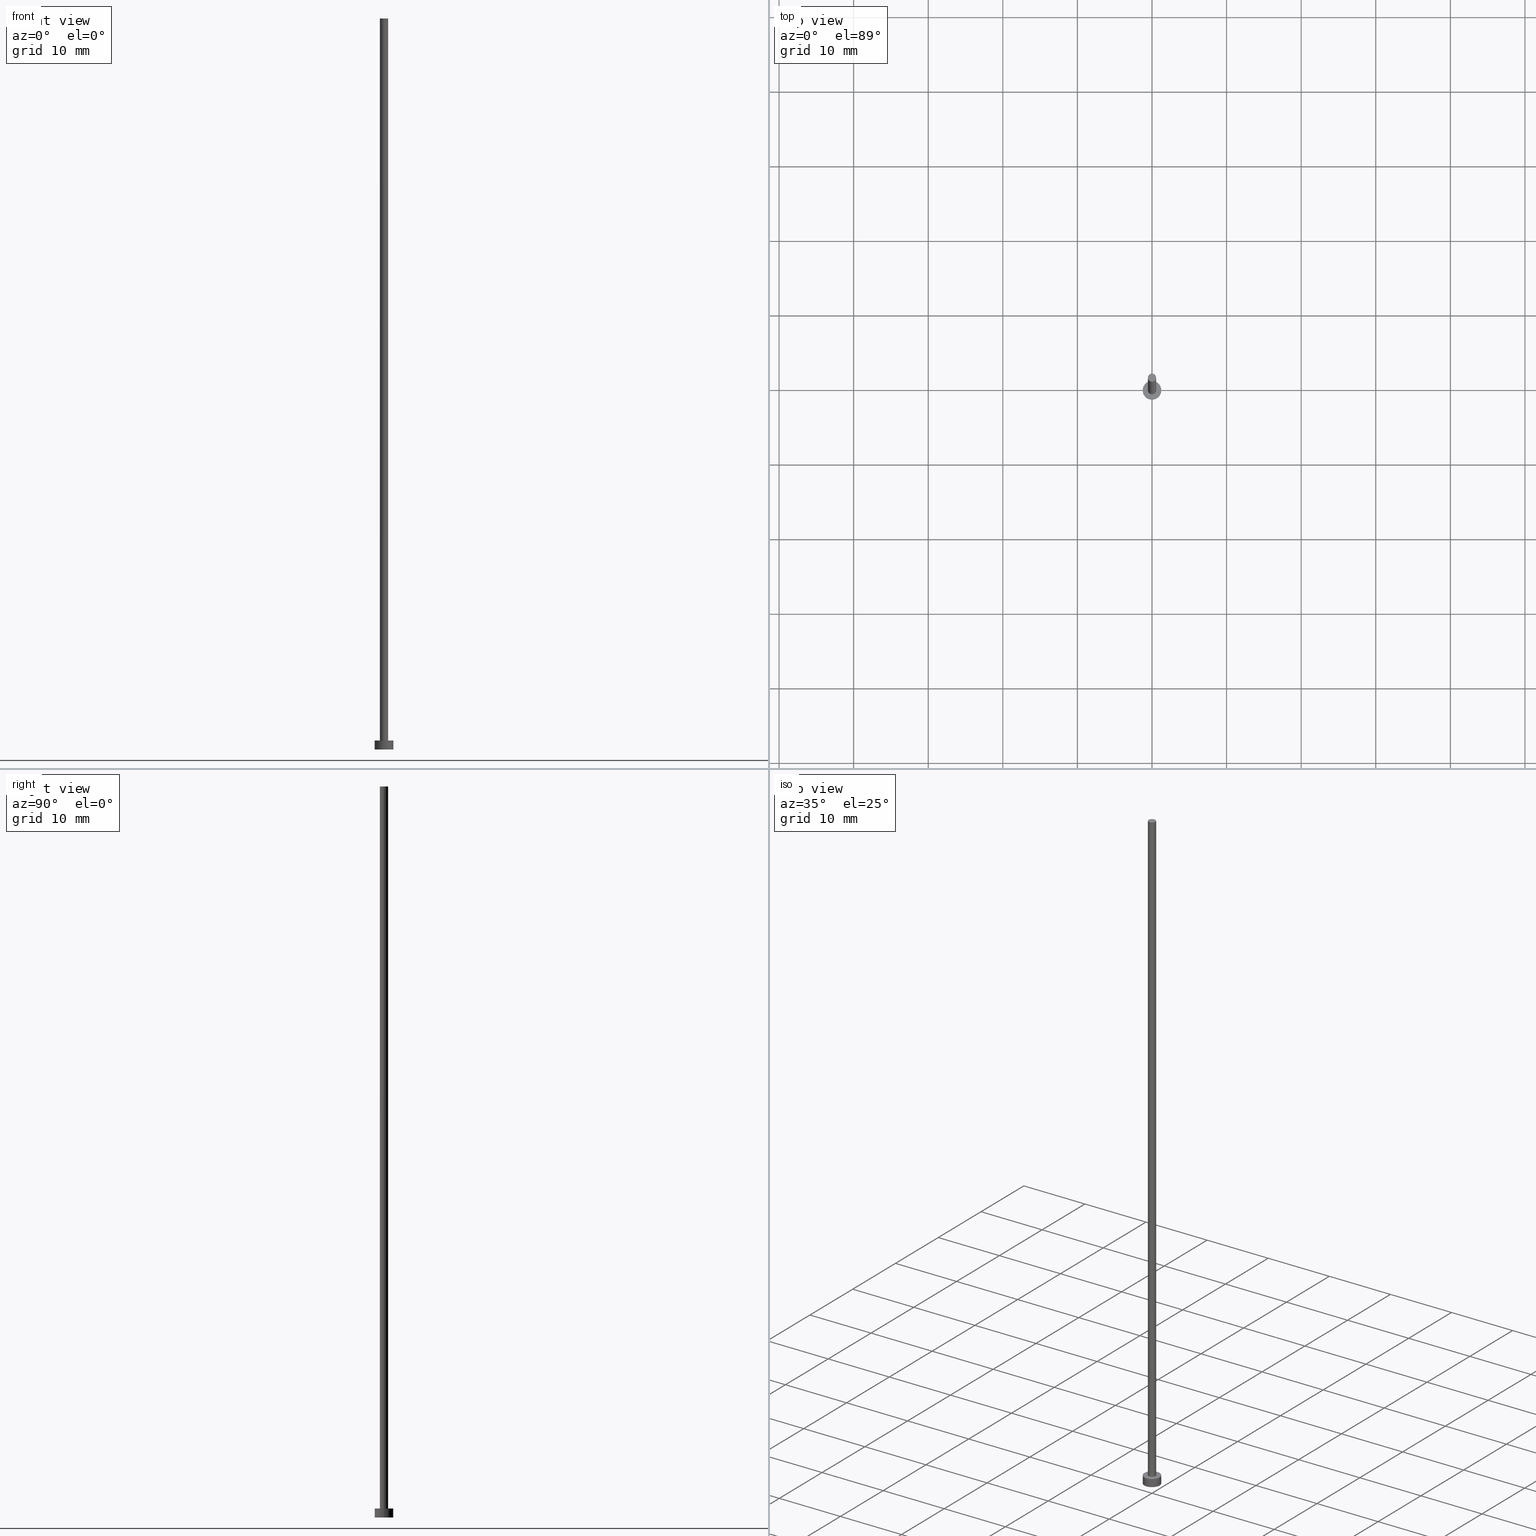
[diagram: canonical four-view strip — front | top / right | iso, engineering-drawing reading convention]
A machine part, canonical four-view strip (front | top / right | iso — engineering-drawing reading convention). The complete STEP part file that produces these views, byte-faithful:
ISO-10303-21;
HEADER;
FILE_DESCRIPTION (( 'STEP AP203' ),
    '1' );
FILE_NAME ('a6ae.STEP',
    '2023-03-29T12:19:38',
    ( '' ),
    ( '' ),
    'SwSTEP 2.0',
    'SolidWorks 2019',
    '' );
FILE_SCHEMA (( 'CONFIG_CONTROL_DESIGN' ));
ENDSEC;

DATA;
#1 = ORIENTED_EDGE ( 'NONE', *, *, #177, .T. ) ;
#2 = ADVANCED_FACE ( 'NONE', ( #210, #244 ), #193, .T. ) ;
#3 = CARTESIAN_POINT ( 'NONE',  ( -0.5500000000000000444, 0.000000000000000000, 98.00000000000000000 ) ) ;
#4 = LOCAL_TIME ( 14, 19, 38.00000000000000000, #226 ) ;
#5 = PERSON_AND_ORGANIZATION ( #28, #254 ) ;
#6 = PERSON_AND_ORGANIZATION ( #28, #254 ) ;
#7 = ORIENTED_EDGE ( 'NONE', *, *, #97, .T. ) ;
#8 = EDGE_CURVE ( 'NONE', #40, #146, #24, .T. ) ;
#9 = DATE_AND_TIME ( #202, #201 ) ;
#10 = LOCAL_TIME ( 14, 19, 38.00000000000000000, #50 ) ;
#11 = ORIENTED_EDGE ( 'NONE', *, *, #248, .F. ) ;
#12 = APPLICATION_CONTEXT ( 'configuration controlled 3d designs of mechanical parts and assemblies' ) ;
#13 = CYLINDRICAL_SURFACE ( 'NONE', #148, 1.250000000000000000 ) ;
#14 = CC_DESIGN_PERSON_AND_ORGANIZATION_ASSIGNMENT ( #55, #152, ( #159 ) ) ;
#15 = EDGE_LOOP ( 'NONE', ( #99, #139 ) ) ;
#16 = AXIS2_PLACEMENT_3D ( 'NONE', #161, #235, #127 ) ;
#17 = VERTEX_POINT ( 'NONE', #243 ) ;
#18 = PLANE ( 'NONE',  #85 ) ;
#19 = DIRECTION ( 'NONE',  ( 1.000000000000000000, 0.000000000000000000, 0.000000000000000000 ) ) ;
#20 = DIRECTION ( 'NONE',  ( 1.000000000000000000, 0.000000000000000000, -0.000000000000000000 ) ) ;
#21 = AXIS2_PLACEMENT_3D ( 'NONE', #151, #225, #54 ) ;
#22 = APPROVAL ( #186, 'NEUR�EN�' ) ;
#23 = APPLICATION_PROTOCOL_DEFINITION ( 'international standard', 'config_control_design', 1994, #12 ) ;
#24 = CIRCLE ( 'NONE', #89, 0.5500000000000000444 ) ;
#25 = PERSON_AND_ORGANIZATION ( #28, #254 ) ;
#26 = CC_DESIGN_APPROVAL ( #221, ( #229 ) ) ;
#27 = APPROVAL_STATUS ( 'not_yet_approved' ) ;
#28 = PERSON ( 'NEUR�EN�', 'NEUR�EN�', 'NEUR�EN�', ('NEUR�EN�'), ('NEUR�EN�'), ('NEUR�EN�') ) ;
#29 = DATE_TIME_ROLE ( 'classification_date' ) ;
#30 = DIRECTION ( 'NONE',  ( 0.000000000000000000, 0.000000000000000000, 1.000000000000000000 ) ) ;
#31 = DIRECTION ( 'NONE',  ( 1.000000000000000000, 0.000000000000000000, -0.000000000000000000 ) ) ;
#32 = CALENDAR_DATE ( 2023, 29, 3 ) ;
#33 = AXIS2_PLACEMENT_3D ( 'NONE', #101, #135, #227 ) ;
#34 = DIRECTION ( 'NONE',  ( -0.000000000000000000, -0.000000000000000000, -1.000000000000000000 ) ) ;
#35 = EDGE_CURVE ( 'NONE', #171, #190, #228, .T. ) ;
#36 = ORIENTED_EDGE ( 'NONE', *, *, #216, .T. ) ;
#37 = CARTESIAN_POINT ( 'NONE',  ( 0.000000000000000000, 0.000000000000000000, 1.199999999999999956 ) ) ;
#38 = APPLICATION_CONTEXT ( 'configuration controlled 3d designs of mechanical parts and assemblies' ) ;
#39 = VECTOR ( 'NONE', #176, 1000.000000000000000 ) ;
#40 = VERTEX_POINT ( 'NONE', #211 ) ;
#41 = CARTESIAN_POINT ( 'NONE',  ( 0.5500000000000000444, 6.735557395310442516E-17, 98.00000000000000000 ) ) ;
#42 = CARTESIAN_POINT ( 'NONE',  ( 0.000000000000000000, 0.000000000000000000, 98.00000000000000000 ) ) ;
#43 = FACE_OUTER_BOUND ( 'NONE', #15, .T. ) ;
#44 = VECTOR ( 'NONE', #142, 1000.000000000000000 ) ;
#45 = EDGE_CURVE ( 'NONE', #82, #231, #180, .T. ) ;
#46 = CARTESIAN_POINT ( 'NONE',  ( 0.000000000000000000, 0.000000000000000000, 0.000000000000000000 ) ) ;
#47 = PRODUCT_DEFINITION_FORMATION_WITH_SPECIFIED_SOURCE ( 'LIBOVOLN�', '', #159, .NOT_KNOWN. ) ;
#48 = ORIENTED_EDGE ( 'NONE', *, *, #87, .F. ) ;
#49 = APPROVAL_ROLE ( '' ) ;
#50 = COORDINATED_UNIVERSAL_TIME_OFFSET ( 1, 0, .AHEAD. ) ;
#51 = CC_DESIGN_APPROVAL ( #22, ( #62 ) ) ;
#52 = APPROVAL_DATE_TIME ( #92, #22 ) ;
#53 = PERSON_AND_ORGANIZATION_ROLE ( 'classification_officer' ) ;
#54 = DIRECTION ( 'NONE',  ( 1.000000000000000000, 0.000000000000000000, 0.000000000000000000 ) ) ;
#55 = PERSON_AND_ORGANIZATION ( #28, #254 ) ;
#56 = ADVANCED_FACE ( 'NONE', ( #57 ), #136, .T. ) ;
#57 = FACE_OUTER_BOUND ( 'NONE', #233, .T. ) ;
#58 = AXIS2_PLACEMENT_3D ( 'NONE', #172, #30, #188 ) ;
#59 = CARTESIAN_POINT ( 'NONE',  ( -1.250000000000000000, 0.000000000000000000, 1.199999999999999956 ) ) ;
#60 = CARTESIAN_POINT ( 'NONE',  ( 0.000000000000000000, 0.000000000000000000, 1.199999999999999956 ) ) ;
#61 = EDGE_LOOP ( 'NONE', ( #103, #73 ) ) ;
#62 = PRODUCT_DEFINITION ( 'NEZN�M�', '', #47, #200 ) ;
#63 = APPROVAL_PERSON_ORGANIZATION ( #6, #203, #49 ) ;
#64 = DIRECTION ( 'NONE',  ( 1.000000000000000000, 0.000000000000000000, 0.000000000000000000 ) ) ;
#65 = DIRECTION ( 'NONE',  ( 0.000000000000000000, 0.000000000000000000, 1.000000000000000000 ) ) ;
#66 = DIRECTION ( 'NONE',  ( 1.000000000000000000, 0.000000000000000000, -0.000000000000000000 ) ) ;
#67 = ADVANCED_FACE ( 'NONE', ( #191 ), #13, .T. ) ;
#68 = EDGE_CURVE ( 'NONE', #115, #17, #140, .T. ) ;
#69 = AXIS2_PLACEMENT_3D ( 'NONE', #46, #215, #20 ) ;
#70 = CARTESIAN_POINT ( 'NONE',  ( 1.250000000000000000, 1.530808498934191571E-16, 1.199999999999999956 ) ) ;
#71 = DATE_AND_TIME ( #169, #10 ) ;
#72 = CALENDAR_DATE ( 2023, 29, 3 ) ;
#73 = ORIENTED_EDGE ( 'NONE', *, *, #68, .F. ) ;
#74 = CIRCLE ( 'NONE', #164, 0.5500000000000000444 ) ;
#75 = DATE_AND_TIME ( #133, #95 ) ;
#76 = ORIENTED_EDGE ( 'NONE', *, *, #35, .F. ) ;
#77 = PERSON_AND_ORGANIZATION ( #28, #254 ) ;
#78 = CARTESIAN_POINT ( 'NONE',  ( 0.000000000000000000, 0.000000000000000000, 98.00000000000000000 ) ) ;
#79 = DIRECTION ( 'NONE',  ( -1.000000000000000000, 0.000000000000000000, 0.000000000000000000 ) ) ;
#80 = AXIS2_PLACEMENT_3D ( 'NONE', #60, #246, #31 ) ;
#81 = ORIENTED_EDGE ( 'NONE', *, *, #97, .F. ) ;
#82 = VERTEX_POINT ( 'NONE', #59 ) ;
#83 = PRODUCT_DEFINITION_SHAPE ( 'NONE', 'NONE',  #62 ) ;
#84 = CARTESIAN_POINT ( 'NONE',  ( -1.250000000000000000, 0.000000000000000000, 1.199999999999999956 ) ) ;
#85 = AXIS2_PLACEMENT_3D ( 'NONE', #104, #124, #66 ) ;
#86 = FACE_OUTER_BOUND ( 'NONE', #94, .T. ) ;
#87 = EDGE_CURVE ( 'NONE', #82, #17, #137, .T. ) ;
#88 = CARTESIAN_POINT ( 'NONE',  ( 1.250000000000000000, 1.530808498934191571E-16, 1.199999999999999956 ) ) ;
#89 = AXIS2_PLACEMENT_3D ( 'NONE', #78, #154, #170 ) ;
#90 = CARTESIAN_POINT ( 'NONE',  ( -0.5500000000000000444, 0.000000000000000000, 98.00000000000000000 ) ) ;
#91 = CC_DESIGN_APPROVAL ( #203, ( #47 ) ) ;
#92 = DATE_AND_TIME ( #32, #219 ) ;
#93 = DATE_TIME_ROLE ( 'creation_date' ) ;
#94 = EDGE_LOOP ( 'NONE', ( #168, #11, #1, #192 ) ) ;
#95 = LOCAL_TIME ( 14, 19, 38.00000000000000000, #182 ) ;
#96 = ORIENTED_EDGE ( 'NONE', *, *, #45, .T. ) ;
#97 = EDGE_CURVE ( 'NONE', #190, #171, #189, .T. ) ;
#98 = COORDINATED_UNIVERSAL_TIME_OFFSET ( 1, 0, .AHEAD. ) ;
#99 = ORIENTED_EDGE ( 'NONE', *, *, #248, .T. ) ;
#100 = ADVANCED_BREP_SHAPE_REPRESENTATION ( 'a6ae', ( #250, #58 ), #247 ) ;
#101 = CARTESIAN_POINT ( 'NONE',  ( 0.000000000000000000, 0.000000000000000000, 1.199999999999999956 ) ) ;
#102 = CIRCLE ( 'NONE', #239, 1.250000000000000000 ) ;
#103 = ORIENTED_EDGE ( 'NONE', *, *, #153, .F. ) ;
#104 = CARTESIAN_POINT ( 'NONE',  ( 0.000000000000000000, 0.000000000000000000, 98.00000000000000000 ) ) ;
#105 = DIRECTION ( 'NONE',  ( -0.000000000000000000, -0.000000000000000000, -1.000000000000000000 ) ) ;
#106 = ADVANCED_FACE ( 'NONE', ( #141 ), #143, .F. ) ;
#107 =( LENGTH_UNIT ( ) NAMED_UNIT ( * ) SI_UNIT ( .MILLI., .METRE. ) );
#108 = CARTESIAN_POINT ( 'NONE',  ( 0.5500000000000000444, 6.735557395310442516E-17, 1.199999999999999956 ) ) ;
#109 = ADVANCED_FACE ( 'NONE', ( #199 ), #162, .T. ) ;
#110 = APPROVAL_ROLE ( '' ) ;
#111 = APPROVAL_ROLE ( '' ) ;
#112 = ORIENTED_EDGE ( 'NONE', *, *, #87, .T. ) ;
#113 = DATE_AND_TIME ( #72, #4 ) ;
#114 = APPLICATION_PROTOCOL_DEFINITION ( 'international standard', 'config_control_design', 1994, #38 ) ;
#115 = VERTEX_POINT ( 'NONE', #178 ) ;
#116 = CC_DESIGN_PERSON_AND_ORGANIZATION_ASSIGNMENT ( #207, #53, ( #229 ) ) ;
#117 = VECTOR ( 'NONE', #240, 1000.000000000000000 ) ;
#118 = DIRECTION ( 'NONE',  ( -1.000000000000000000, 0.000000000000000000, 0.000000000000000000 ) ) ;
#119 = ORIENTED_EDGE ( 'NONE', *, *, #160, .F. ) ;
#120 = CC_DESIGN_DATE_AND_TIME_ASSIGNMENT ( #9, #29, ( #229 ) ) ;
#121 = DIRECTION ( 'NONE',  ( 1.000000000000000000, 0.000000000000000000, 0.000000000000000000 ) ) ;
#122 = DIRECTION ( 'NONE',  ( 1.000000000000000000, 0.000000000000000000, 0.000000000000000000 ) ) ;
#123 = DIRECTION ( 'NONE',  ( 0.000000000000000000, 0.000000000000000000, 1.000000000000000000 ) ) ;
#124 = DIRECTION ( 'NONE',  ( 0.000000000000000000, 0.000000000000000000, 1.000000000000000000 ) ) ;
#125 = APPROVAL_PERSON_ORGANIZATION ( #204, #221, #111 ) ;
#126 = CYLINDRICAL_SURFACE ( 'NONE', #16, 0.5500000000000000444 ) ;
#127 = DIRECTION ( 'NONE',  ( -1.000000000000000000, 0.000000000000000000, 0.000000000000000000 ) ) ;
#128 = CC_DESIGN_PERSON_AND_ORGANIZATION_ASSIGNMENT ( #25, #149, ( #62 ) ) ;
#129 = ORIENTED_EDGE ( 'NONE', *, *, #160, .T. ) ;
#130 = PERSON_AND_ORGANIZATION_ROLE ( 'creator' ) ;
#131 = APPROVAL_STATUS ( 'not_yet_approved' ) ;
#132 = VECTOR ( 'NONE', #220, 1000.000000000000000 ) ;
#133 = CALENDAR_DATE ( 2023, 29, 3 ) ;
#134 = CC_DESIGN_PERSON_AND_ORGANIZATION_ASSIGNMENT ( #77, #130, ( #47 ) ) ;
#135 = DIRECTION ( 'NONE',  ( 0.000000000000000000, 0.000000000000000000, 1.000000000000000000 ) ) ;
#136 = CYLINDRICAL_SURFACE ( 'NONE', #208, 0.5500000000000000444 ) ;
#137 = LINE ( 'NONE', #84, #39 ) ;
#138 = ORIENTED_EDGE ( 'NONE', *, *, #181, .F. ) ;
#139 = ORIENTED_EDGE ( 'NONE', *, *, #8, .T. ) ;
#140 = CIRCLE ( 'NONE', #198, 1.250000000000000000 ) ;
#141 = FACE_OUTER_BOUND ( 'NONE', #61, .T. ) ;
#142 = DIRECTION ( 'NONE',  ( -0.000000000000000000, -0.000000000000000000, -1.000000000000000000 ) ) ;
#143 = PLANE ( 'NONE',  #69 ) ;
#144 = AXIS2_PLACEMENT_3D ( 'NONE', #179, #105, #234 ) ;
#145 = PRODUCT_RELATED_PRODUCT_CATEGORY ( 'detail', '', ( #159 ) ) ;
#146 = VERTEX_POINT ( 'NONE', #3 ) ;
#147 = APPROVAL_DATE_TIME ( #71, #203 ) ;
#148 = AXIS2_PLACEMENT_3D ( 'NONE', #37, #173, #79 ) ;
#149 = PERSON_AND_ORGANIZATION_ROLE ( 'creator' ) ;
#150 = EDGE_LOOP ( 'NONE', ( #119, #174, #112, #212 ) ) ;
#151 = CARTESIAN_POINT ( 'NONE',  ( 0.000000000000000000, 0.000000000000000000, 1.199999999999999956 ) ) ;
#152 = PERSON_AND_ORGANIZATION_ROLE ( 'design_owner' ) ;
#153 = EDGE_CURVE ( 'NONE', #17, #115, #102, .T. ) ;
#154 = DIRECTION ( 'NONE',  ( 0.000000000000000000, 0.000000000000000000, 1.000000000000000000 ) ) ;
#155 = CC_DESIGN_SECURITY_CLASSIFICATION ( #229, ( #47 ) ) ;
#156 = ORIENTED_EDGE ( 'NONE', *, *, #177, .F. ) ;
#157 = EDGE_LOOP ( 'NONE', ( #138, #129, #251, #48 ) ) ;
#158 = CARTESIAN_POINT ( 'NONE',  ( 0.000000000000000000, 0.000000000000000000, 1.199999999999999956 ) ) ;
#159 = PRODUCT ( 'a6ae', 'a6ae', '', ( #245 ) ) ;
#160 = EDGE_CURVE ( 'NONE', #231, #115, #214, .T. ) ;
#161 = CARTESIAN_POINT ( 'NONE',  ( 0.000000000000000000, 0.000000000000000000, 98.00000000000000000 ) ) ;
#162 = CYLINDRICAL_SURFACE ( 'NONE', #144, 1.250000000000000000 ) ;
#163 = DIRECTION ( 'NONE',  ( 0.000000000000000000, 0.000000000000000000, 1.000000000000000000 ) ) ;
#164 = AXIS2_PLACEMENT_3D ( 'NONE', #42, #163, #217 ) ;
#165 = LINE ( 'NONE', #41, #44 ) ;
#166 = AXIS2_PLACEMENT_3D ( 'NONE', #158, #123, #122 ) ;
#167 = PERSON_AND_ORGANIZATION_ROLE ( 'design_supplier' ) ;
#168 = ORIENTED_EDGE ( 'NONE', *, *, #216, .F. ) ;
#169 = CALENDAR_DATE ( 2023, 29, 3 ) ;
#170 = DIRECTION ( 'NONE',  ( 1.000000000000000000, 0.000000000000000000, 0.000000000000000000 ) ) ;
#171 = VERTEX_POINT ( 'NONE', #195 ) ;
#172 = CARTESIAN_POINT ( 'NONE',  ( 0.000000000000000000, 0.000000000000000000, 0.000000000000000000 ) ) ;
#173 = DIRECTION ( 'NONE',  ( -0.000000000000000000, -0.000000000000000000, -1.000000000000000000 ) ) ;
#174 = ORIENTED_EDGE ( 'NONE', *, *, #45, .F. ) ;
#175 = ORIENTED_EDGE ( 'NONE', *, *, #181, .T. ) ;
#176 = DIRECTION ( 'NONE',  ( -0.000000000000000000, -0.000000000000000000, -1.000000000000000000 ) ) ;
#177 = EDGE_CURVE ( 'NONE', #146, #171, #238, .T. ) ;
#178 = CARTESIAN_POINT ( 'NONE',  ( 1.250000000000000000, 1.530808498934191571E-16, 0.000000000000000000 ) ) ;
#179 = CARTESIAN_POINT ( 'NONE',  ( 0.000000000000000000, 0.000000000000000000, 1.199999999999999956 ) ) ;
#180 = CIRCLE ( 'NONE', #33, 1.250000000000000000 ) ;
#181 = EDGE_CURVE ( 'NONE', #231, #82, #223, .T. ) ;
#182 = COORDINATED_UNIVERSAL_TIME_OFFSET ( 1, 0, .AHEAD. ) ;
#183 = ORIENTED_EDGE ( 'NONE', *, *, #8, .F. ) ;
#184 = SHAPE_DEFINITION_REPRESENTATION ( #83, #100 ) ;
#185 = CC_DESIGN_PERSON_AND_ORGANIZATION_ASSIGNMENT ( #224, #167, ( #47 ) ) ;
#186 = APPROVAL_STATUS ( 'not_yet_approved' ) ;
#187 = EDGE_LOOP ( 'NONE', ( #96, #175 ) ) ;
#188 = DIRECTION ( 'NONE',  ( 1.000000000000000000, 0.000000000000000000, 0.000000000000000000 ) ) ;
#189 = CIRCLE ( 'NONE', #166, 0.5500000000000000444 ) ;
#190 = VERTEX_POINT ( 'NONE', #108 ) ;
#191 = FACE_OUTER_BOUND ( 'NONE', #150, .T. ) ;
#192 = ORIENTED_EDGE ( 'NONE', *, *, #35, .T. ) ;
#193 = PLANE ( 'NONE',  #80 ) ;
#194 = APPROVAL_PERSON_ORGANIZATION ( #5, #22, #110 ) ;
#195 = CARTESIAN_POINT ( 'NONE',  ( -0.5500000000000000444, 0.000000000000000000, 1.199999999999999956 ) ) ;
#196 = CARTESIAN_POINT ( 'NONE',  ( 0.000000000000000000, 0.000000000000000000, 0.000000000000000000 ) ) ;
#197 = ADVANCED_FACE ( 'NONE', ( #86 ), #126, .T. ) ;
#198 = AXIS2_PLACEMENT_3D ( 'NONE', #230, #249, #121 ) ;
#199 = FACE_OUTER_BOUND ( 'NONE', #157, .T. ) ;
#200 = DESIGN_CONTEXT ( 'detailed design', #38, 'design' ) ;
#201 = LOCAL_TIME ( 14, 19, 38.00000000000000000, #222 ) ;
#202 = CALENDAR_DATE ( 2023, 29, 3 ) ;
#203 = APPROVAL ( #131, 'NEUR�EN�' ) ;
#204 = PERSON_AND_ORGANIZATION ( #28, #254 ) ;
#205 = CLOSED_SHELL ( 'NONE', ( #56, #109, #67, #2, #106, #197, #218 ) ) ;
#206 = EDGE_LOOP ( 'NONE', ( #76, #81 ) ) ;
#207 = PERSON_AND_ORGANIZATION ( #28, #254 ) ;
#208 = AXIS2_PLACEMENT_3D ( 'NONE', #209, #34, #118 ) ;
#209 = CARTESIAN_POINT ( 'NONE',  ( 0.000000000000000000, 0.000000000000000000, 98.00000000000000000 ) ) ;
#210 = FACE_BOUND ( 'NONE', #206, .T. ) ;
#211 = CARTESIAN_POINT ( 'NONE',  ( 0.5500000000000000444, 6.735557395310442516E-17, 98.00000000000000000 ) ) ;
#212 = ORIENTED_EDGE ( 'NONE', *, *, #153, .T. ) ;
#213 = AXIS2_PLACEMENT_3D ( 'NONE', #253, #65, #64 ) ;
#214 = LINE ( 'NONE', #88, #132 ) ;
#215 = DIRECTION ( 'NONE',  ( 0.000000000000000000, 0.000000000000000000, 1.000000000000000000 ) ) ;
#216 = EDGE_CURVE ( 'NONE', #40, #190, #165, .T. ) ;
#217 = DIRECTION ( 'NONE',  ( 1.000000000000000000, 0.000000000000000000, 0.000000000000000000 ) ) ;
#218 = ADVANCED_FACE ( 'NONE', ( #43 ), #18, .T. ) ;
#219 = LOCAL_TIME ( 14, 19, 38.00000000000000000, #98 ) ;
#220 = DIRECTION ( 'NONE',  ( -0.000000000000000000, -0.000000000000000000, -1.000000000000000000 ) ) ;
#221 = APPROVAL ( #27, 'NEUR�EN�' ) ;
#222 = COORDINATED_UNIVERSAL_TIME_OFFSET ( 1, 0, .AHEAD. ) ;
#223 = CIRCLE ( 'NONE', #213, 1.250000000000000000 ) ;
#224 = PERSON_AND_ORGANIZATION ( #28, #254 ) ;
#225 = DIRECTION ( 'NONE',  ( 0.000000000000000000, 0.000000000000000000, 1.000000000000000000 ) ) ;
#226 = COORDINATED_UNIVERSAL_TIME_OFFSET ( 1, 0, .AHEAD. ) ;
#227 = DIRECTION ( 'NONE',  ( 1.000000000000000000, 0.000000000000000000, 0.000000000000000000 ) ) ;
#228 = CIRCLE ( 'NONE', #21, 0.5500000000000000444 ) ;
#229 = SECURITY_CLASSIFICATION ( '', '', #241 ) ;
#230 = CARTESIAN_POINT ( 'NONE',  ( 0.000000000000000000, 0.000000000000000000, 0.000000000000000000 ) ) ;
#231 = VERTEX_POINT ( 'NONE', #70 ) ;
#232 = CC_DESIGN_DATE_AND_TIME_ASSIGNMENT ( #75, #93, ( #62 ) ) ;
#233 = EDGE_LOOP ( 'NONE', ( #183, #36, #7, #156 ) ) ;
#234 = DIRECTION ( 'NONE',  ( -1.000000000000000000, 0.000000000000000000, 0.000000000000000000 ) ) ;
#235 = DIRECTION ( 'NONE',  ( -0.000000000000000000, -0.000000000000000000, -1.000000000000000000 ) ) ;
#236 = UNCERTAINTY_MEASURE_WITH_UNIT (LENGTH_MEASURE( 1.000000000000000082E-05 ), #107, 'distance_accuracy_value', 'NONE');
#237 = DIRECTION ( 'NONE',  ( 0.000000000000000000, 0.000000000000000000, 1.000000000000000000 ) ) ;
#238 = LINE ( 'NONE', #90, #117 ) ;
#239 = AXIS2_PLACEMENT_3D ( 'NONE', #196, #237, #19 ) ;
#240 = DIRECTION ( 'NONE',  ( -0.000000000000000000, -0.000000000000000000, -1.000000000000000000 ) ) ;
#241 = SECURITY_CLASSIFICATION_LEVEL ( 'unclassified' ) ;
#242 = APPROVAL_DATE_TIME ( #113, #221 ) ;
#243 = CARTESIAN_POINT ( 'NONE',  ( -1.250000000000000000, 0.000000000000000000, 0.000000000000000000 ) ) ;
#244 = FACE_OUTER_BOUND ( 'NONE', #187, .T. ) ;
#245 = MECHANICAL_CONTEXT ( 'NONE', #12, 'mechanical' ) ;
#246 = DIRECTION ( 'NONE',  ( 0.000000000000000000, 0.000000000000000000, 1.000000000000000000 ) ) ;
#247 =( GEOMETRIC_REPRESENTATION_CONTEXT ( 3 ) GLOBAL_UNCERTAINTY_ASSIGNED_CONTEXT ( ( #236 ) ) GLOBAL_UNIT_ASSIGNED_CONTEXT ( ( #107, #252, #255 ) ) REPRESENTATION_CONTEXT ( 'NONE', 'WORKASPACE' ) );
#248 = EDGE_CURVE ( 'NONE', #146, #40, #74, .T. ) ;
#249 = DIRECTION ( 'NONE',  ( 0.000000000000000000, 0.000000000000000000, 1.000000000000000000 ) ) ;
#250 = MANIFOLD_SOLID_BREP ( 'P�idat vysunut�m3', #205 ) ;
#251 = ORIENTED_EDGE ( 'NONE', *, *, #68, .T. ) ;
#252 =( NAMED_UNIT ( * ) PLANE_ANGLE_UNIT ( ) SI_UNIT ( $, .RADIAN. ) );
#253 = CARTESIAN_POINT ( 'NONE',  ( 0.000000000000000000, 0.000000000000000000, 1.199999999999999956 ) ) ;
#254 = ORGANIZATION ( 'NEUR�EN�', 'NEUR�EN�', '' ) ;
#255 =( NAMED_UNIT ( * ) SI_UNIT ( $, .STERADIAN. ) SOLID_ANGLE_UNIT ( ) );
ENDSEC;
END-ISO-10303-21;
